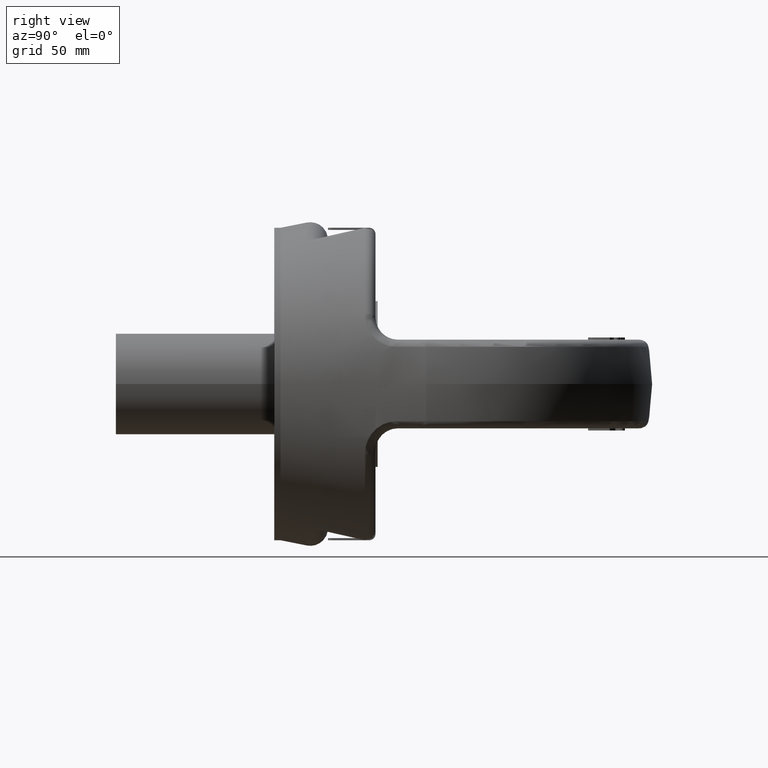
[diagram: clean part render]
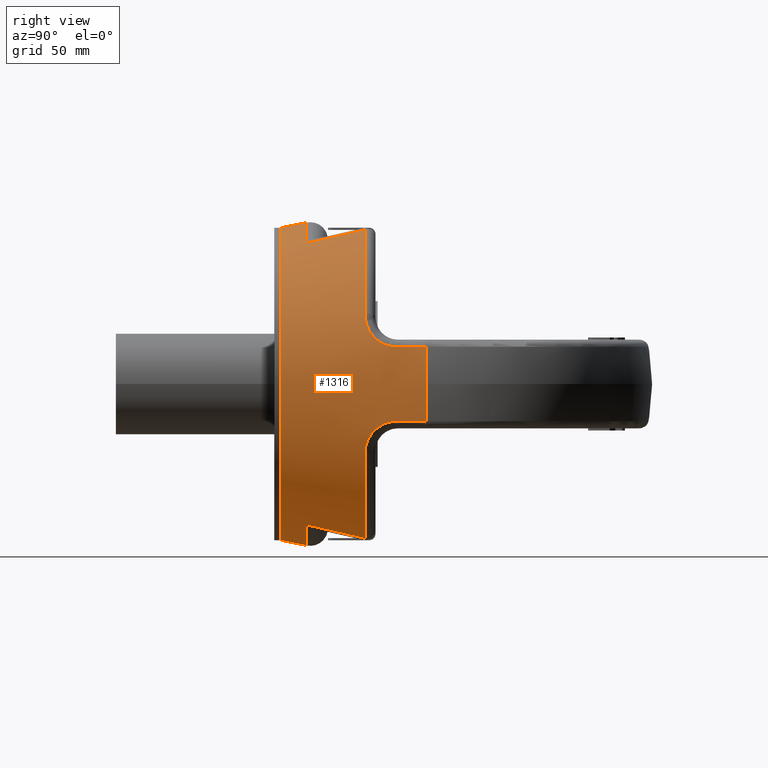
[diagram: same view with one face highlighted and labeled with its STEP entity id]
A machine part, right view. The second image highlights one B-rep face of the part: STEP entity #1316.
In plain terms, the highlighted conical surface has half-angle 11.288 deg.
Its self-contained STEP definition (entity closure, byte-faithful):
#1090=CONICAL_SURFACE('',#5143,73.401198474061,11.2879219682626);
#1316=ADVANCED_FACE('',(#1767,#1768),#1090,.T.);
#1676=CIRCLE('',#5134,87.7687068523221);
#1677=CIRCLE('',#5135,81.979608059908);
#1678=CIRCLE('',#5136,76.486181786183);
#1679=CIRCLE('',#5137,81.9796080599081);
#1680=CIRCLE('',#5138,87.7687068523221);
#1681=CIRCLE('',#5139,81.979608059908);
#1682=CIRCLE('',#5140,76.486181786183);
#1683=CIRCLE('',#5141,81.9796080599081);
#1684=CIRCLE('',#5142,74.0000000000002);
#1767=FACE_BOUND('',#1828,.T.);
#1768=FACE_BOUND('',#1829,.T.);
#1828=EDGE_LOOP('',(#2810,#2811,#2812,#2813,#2814,#2815,#2816,#2817,#2818,
#2819,#2820,#2821,#2822,#2823,#2824,#2825,#2826,#2827,#2828,#2829));
#1829=EDGE_LOOP('',(#2830));
#2810=ORIENTED_EDGE('',*,*,#4372,.T.);
#2811=ORIENTED_EDGE('',*,*,#4373,.T.);
#2812=ORIENTED_EDGE('',*,*,#4374,.T.);
#2813=ORIENTED_EDGE('',*,*,#4375,.T.);
#2814=ORIENTED_EDGE('',*,*,#4376,.T.);
#2815=ORIENTED_EDGE('',*,*,#4377,.T.);
#2816=ORIENTED_EDGE('',*,*,#4378,.T.);
#2817=ORIENTED_EDGE('',*,*,#4379,.T.);
#2818=ORIENTED_EDGE('',*,*,#4380,.T.);
#2819=ORIENTED_EDGE('',*,*,#4381,.T.);
#2820=ORIENTED_EDGE('',*,*,#4382,.T.);
#2821=ORIENTED_EDGE('',*,*,#4383,.T.);
#2822=ORIENTED_EDGE('',*,*,#4384,.T.);
#2823=ORIENTED_EDGE('',*,*,#4385,.T.);
#2824=ORIENTED_EDGE('',*,*,#4386,.T.);
#2825=ORIENTED_EDGE('',*,*,#4387,.T.);
#2826=ORIENTED_EDGE('',*,*,#4388,.T.);
#2827=ORIENTED_EDGE('',*,*,#4389,.T.);
#2828=ORIENTED_EDGE('',*,*,#4390,.T.);
#2829=ORIENTED_EDGE('',*,*,#4391,.T.);
#2830=ORIENTED_EDGE('',*,*,#4392,.F.);
#3982=VERTEX_POINT('',#6756);
#3983=VERTEX_POINT('',#6757);
#3984=VERTEX_POINT('',#6765);
#3985=VERTEX_POINT('',#6772);
#3986=VERTEX_POINT('',#6774);
#3987=VERTEX_POINT('',#6782);
#3988=VERTEX_POINT('',#6784);
#3989=VERTEX_POINT('',#6792);
#3990=VERTEX_POINT('',#6794);
#3991=VERTEX_POINT('',#6801);
#3992=VERTEX_POINT('',#6809);
#3993=VERTEX_POINT('',#6811);
#3994=VERTEX_POINT('',#6819);
#3995=VERTEX_POINT('',#6826);
#3996=VERTEX_POINT('',#6828);
#3997=VERTEX_POINT('',#6836);
#3998=VERTEX_POINT('',#6838);
#3999=VERTEX_POINT('',#6846);
#4000=VERTEX_POINT('',#6848);
#4001=VERTEX_POINT('',#6855);
#4002=VERTEX_POINT('',#6864);
#4372=EDGE_CURVE('',#3982,#3983,#1676,.T.);
#4373=EDGE_CURVE('',#3983,#3984,#4887,.T.);
#4374=EDGE_CURVE('',#3984,#3985,#4888,.T.);
#4375=EDGE_CURVE('',#3985,#3986,#1677,.T.);
#4376=EDGE_CURVE('',#3986,#3987,#4889,.T.);
#4377=EDGE_CURVE('',#3987,#3988,#1678,.T.);
#4378=EDGE_CURVE('',#3988,#3989,#4890,.T.);
#4379=EDGE_CURVE('',#3989,#3990,#1679,.T.);
#4380=EDGE_CURVE('',#3990,#3991,#4891,.T.);
#4381=EDGE_CURVE('',#3991,#3992,#4892,.T.);
#4382=EDGE_CURVE('',#3992,#3993,#1680,.T.);
#4383=EDGE_CURVE('',#3993,#3994,#4893,.T.);
#4384=EDGE_CURVE('',#3994,#3995,#4894,.T.);
#4385=EDGE_CURVE('',#3995,#3996,#1681,.T.);
#4386=EDGE_CURVE('',#3996,#3997,#4895,.T.);
#4387=EDGE_CURVE('',#3997,#3998,#1682,.T.);
#4388=EDGE_CURVE('',#3998,#3999,#4896,.T.);
#4389=EDGE_CURVE('',#3999,#4000,#1683,.T.);
#4390=EDGE_CURVE('',#4000,#4001,#4897,.T.);
#4391=EDGE_CURVE('',#4001,#3982,#4898,.T.);
#4392=EDGE_CURVE('',#4002,#4002,#1684,.T.);
#4887=B_SPLINE_CURVE_WITH_KNOTS('',3,(#6758,#6759,#6760,#6761,#6762,#6763,
#6764),.UNSPECIFIED.,.F.,.F.,(4,3,4),(0.,0.575382144006688,1.),
 .UNSPECIFIED.);
#4888=B_SPLINE_CURVE_WITH_KNOTS('',3,(#6766,#6767,#6768,#6769,#6770,#6771),
 .UNSPECIFIED.,.F.,.F.,(4,2,4),(0.,0.5,1.),.UNSPECIFIED.);
#4889=B_SPLINE_CURVE_WITH_KNOTS('',3,(#6775,#6776,#6777,#6778,#6779,#6780,
#6781),.UNSPECIFIED.,.F.,.F.,(4,3,4),(0.,0.272292325892562,1.),
 .UNSPECIFIED.);
#4890=B_SPLINE_CURVE_WITH_KNOTS('',3,(#6785,#6786,#6787,#6788,#6789,#6790,
#6791),.UNSPECIFIED.,.F.,.F.,(4,3,4),(0.,0.727707674107441,1.),
 .UNSPECIFIED.);
#4891=B_SPLINE_CURVE_WITH_KNOTS('',3,(#6795,#6796,#6797,#6798,#6799,#6800),
 .UNSPECIFIED.,.F.,.F.,(4,2,4),(0.,0.5,1.),.UNSPECIFIED.);
#4892=B_SPLINE_CURVE_WITH_KNOTS('',3,(#6802,#6803,#6804,#6805,#6806,#6807,
#6808),.UNSPECIFIED.,.F.,.F.,(4,3,4),(0.,0.575382144615784,1.),
 .UNSPECIFIED.);
#4893=B_SPLINE_CURVE_WITH_KNOTS('',3,(#6812,#6813,#6814,#6815,#6816,#6817,
#6818),.UNSPECIFIED.,.F.,.F.,(4,3,4),(0.,0.575382144006688,1.),
 .UNSPECIFIED.);
#4894=B_SPLINE_CURVE_WITH_KNOTS('',3,(#6820,#6821,#6822,#6823,#6824,#6825),
 .UNSPECIFIED.,.F.,.F.,(4,2,4),(0.,0.5,1.),.UNSPECIFIED.);
#4895=B_SPLINE_CURVE_WITH_KNOTS('',3,(#6829,#6830,#6831,#6832,#6833,#6834,
#6835),.UNSPECIFIED.,.F.,.F.,(4,3,4),(0.,0.272292325892562,1.),
 .UNSPECIFIED.);
#4896=B_SPLINE_CURVE_WITH_KNOTS('',3,(#6839,#6840,#6841,#6842,#6843,#6844,
#6845),.UNSPECIFIED.,.F.,.F.,(4,3,4),(0.,0.727707674107441,1.),
 .UNSPECIFIED.);
#4897=B_SPLINE_CURVE_WITH_KNOTS('',3,(#6849,#6850,#6851,#6852,#6853,#6854),
 .UNSPECIFIED.,.F.,.F.,(4,2,4),(0.,0.5,1.),.UNSPECIFIED.);
#4898=B_SPLINE_CURVE_WITH_KNOTS('',3,(#6856,#6857,#6858,#6859,#6860,#6861,
#6862),.UNSPECIFIED.,.F.,.F.,(4,3,4),(0.,0.575382144615784,1.),
 .UNSPECIFIED.);
#5134=AXIS2_PLACEMENT_3D('',#6755,#5481,#5482);
#5135=AXIS2_PLACEMENT_3D('',#6773,#5483,#5484);
#5136=AXIS2_PLACEMENT_3D('',#6783,#5485,#5486);
#5137=AXIS2_PLACEMENT_3D('',#6793,#5487,#5488);
#5138=AXIS2_PLACEMENT_3D('',#6810,#5489,#5490);
#5139=AXIS2_PLACEMENT_3D('',#6827,#5491,#5492);
#5140=AXIS2_PLACEMENT_3D('',#6837,#5493,#5494);
#5141=AXIS2_PLACEMENT_3D('',#6847,#5495,#5496);
#5142=AXIS2_PLACEMENT_3D('',#6863,#5497,#5498);
#5143=AXIS2_PLACEMENT_3D('',#6865,#5499,#5500);
#5481=DIRECTION('',(-7.11751401411749E-16,-1.,0.));
#5482=DIRECTION('',(1.,-7.9058859959991E-16,0.));
#5483=DIRECTION('',(9.15811220910091E-16,-1.,2.14566393535999E-30));
#5484=DIRECTION('',(-1.,-9.3105876875139E-16,-2.34291072916505E-15));
#5485=DIRECTION('',(-1.38777878078145E-16,-1.,-3.25144179520044E-31));
#5486=DIRECTION('',(-1.,1.36081323616825E-16,-2.34291072916505E-15));
#5487=DIRECTION('',(-9.15811220910091E-16,-1.,-2.14566393535999E-30));
#5488=DIRECTION('',(-1.,9.3105876875139E-16,-2.34291072916505E-15));
#5489=DIRECTION('',(-7.11751401411749E-16,-1.,0.));
#5490=DIRECTION('',(1.,-7.9058859959991E-16,0.));
#5491=DIRECTION('',(-9.15811220910091E-16,-1.,0.));
#5492=DIRECTION('',(1.,-9.3105876875139E-16,0.));
#5493=DIRECTION('',(1.38777878078145E-16,-1.,0.));
#5494=DIRECTION('',(1.,1.36081323616825E-16,0.));
#5495=DIRECTION('',(9.15811220910091E-16,-1.,0.));
#5496=DIRECTION('',(1.,9.3105876875139E-16,0.));
#5497=DIRECTION('',(0.,-1.,0.));
#5498=DIRECTION('',(0.,0.,1.));
#5499=DIRECTION('',(7.11751401411749E-16,1.,0.));
#5500=DIRECTION('',(-1.,6.10008836392672E-16,0.));
#6755=CARTESIAN_POINT('',(-7.61706944216453E-14,71.9813214690386,0.));
#6756=CARTESIAN_POINT('',(-85.9803918856891,71.9813214690386,17.6271981242673));
#6757=CARTESIAN_POINT('',(-85.980391885689,71.9813214690385,-17.6271981242675));
#6758=CARTESIAN_POINT('',(-85.980391885689,71.9813214690385,-17.6271981242675));
#6759=CARTESIAN_POINT('',(-85.4203072465742,69.2379155645654,-17.6326130880733));
#6760=CARTESIAN_POINT('',(-84.859969467485,66.4945615337865,-17.6381342485516));
#6761=CARTESIAN_POINT('',(-84.2993617476467,63.7512629124852,-17.6437681040137));
#6762=CARTESIAN_POINT('',(-83.8856470520062,61.7267760672273,-17.6479257506448));
#6763=CARTESIAN_POINT('',(-83.471785314221,59.7023193897382,-17.6521447816647));
#6764=CARTESIAN_POINT('',(-83.057769252926,57.6778944153068,-17.6564279959743));
#6765=CARTESIAN_POINT('',(-83.057769252926,57.6778944153068,-17.6564279959743));
#6766=CARTESIAN_POINT('',(-83.057769252926,57.6778944153068,-17.6564279959743));
#6767=CARTESIAN_POINT('',(-82.2098772359987,53.5319350307372,-17.6651998856651));
#6768=CARTESIAN_POINT('',(-81.047252667366,49.6517807290537,-19.5596904391319));
#6769=CARTESIAN_POINT('',(-78.2740373904578,44.3461610836959,-25.4770536933922));
#6770=CARTESIAN_POINT('',(-76.6778512449568,42.9778944153068,-29.3080652379377));
#6771=CARTESIAN_POINT('',(-74.9710052229681,42.9778944153068,-33.1663159472651));
#6772=CARTESIAN_POINT('',(-74.9710052229681,42.9778944153068,-33.1663159472651));
#6773=CARTESIAN_POINT('',(9.68139242728822E-14,42.9778944153069,2.26826381911508E-28));
#6774=CARTESIAN_POINT('',(-37.1310144158038,42.9778944153068,-73.0886031205242));
#6775=CARTESIAN_POINT('',(-37.1310144158038,42.9778944153068,-73.0886031205242));
#6776=CARTESIAN_POINT('',(-37.1562588620238,40.4781663420141,-72.5161358794599));
#6777=CARTESIAN_POINT('',(-37.1820113280751,37.9788532934449,-71.9418750789134));
#6778=CARTESIAN_POINT('',(-37.2083033527759,35.4799943878611,-71.3656725416174));
#6779=CARTESIAN_POINT('',(-37.2785692704162,28.8017481876345,-69.8257607055953));
#6780=CARTESIAN_POINT('',(-37.3526783553789,22.1266991999599,-68.272050908014));
#6781=CARTESIAN_POINT('',(-37.4313287231455,15.4557888306137,-66.7010617175532));
#6782=CARTESIAN_POINT('',(-37.4313287231455,15.4557888306137,-66.7010617175532));
#6783=CARTESIAN_POINT('',(1.1640282149259E-13,15.4557888306138,2.72721419380072E-28));
#6784=CARTESIAN_POINT('',(37.4313287231458,15.4557888306137,-66.7010617175532));
#6785=CARTESIAN_POINT('',(37.4313287231458,15.4557888306137,-66.7010617175532));
#6786=CARTESIAN_POINT('',(37.3526783553792,22.1266991999599,-68.272050908014));
#6787=CARTESIAN_POINT('',(37.2785692704166,28.8017481876345,-69.8257607055952));
#6788=CARTESIAN_POINT('',(37.2083033527762,35.4799943878613,-71.3656725416173));
#6789=CARTESIAN_POINT('',(37.1820113280754,37.978853293445,-71.9418750789133));
#6790=CARTESIAN_POINT('',(37.1562588620241,40.4781663420142,-72.5161358794598));
#6791=CARTESIAN_POINT('',(37.1310144158042,42.9778944153069,-73.0886031205241));
#6792=CARTESIAN_POINT('',(37.1310144158042,42.9778944153069,-73.0886031205241));
#6793=CARTESIAN_POINT('',(9.68139242728822E-14,42.9778944153069,2.26826381911508E-28));
#6794=CARTESIAN_POINT('',(74.9710052229685,42.9778944153068,-33.1663159472648));
#6795=CARTESIAN_POINT('',(74.9710052229685,42.9778944153068,-33.1663159472648));
#6796=CARTESIAN_POINT('',(76.6765092029486,42.9778944153068,-29.3110988651447));
#6797=CARTESIAN_POINT('',(78.2919740568757,44.3772304922774,-25.4377725682379));
#6798=CARTESIAN_POINT('',(81.0376656573622,49.6366954808028,-19.581158509767));
#6799=CARTESIAN_POINT('',(82.2107922642515,53.5364092678984,-17.6651904192153));
#6800=CARTESIAN_POINT('',(83.0577692529262,57.6778944153068,-17.6564279959739));
#6801=CARTESIAN_POINT('',(83.0577692529262,57.6778944153068,-17.6564279959739));
#6802=CARTESIAN_POINT('',(83.0577692529262,57.6778944153068,-17.6564279959739));
#6803=CARTESIAN_POINT('',(83.6187853413621,60.421109200103,-17.6506239889255));
#6804=CARTESIAN_POINT('',(84.1795181235669,63.1643821888856,-17.6449378132822));
#6805=CARTESIAN_POINT('',(84.7399855117163,65.9077096059232,-17.639362577281));
#6806=CARTESIAN_POINT('',(85.1535966452348,67.9322176978567,-17.6352481903766));
#6807=CARTESIAN_POINT('',(85.5670632112184,69.9567554537605,-17.6311942342402));
#6808=CARTESIAN_POINT('',(85.9803918856892,71.9813214690386,-17.6271981242671));
#6809=CARTESIAN_POINT('',(85.9803918856892,71.9813214690386,-17.6271981242671));
#6810=CARTESIAN_POINT('',(-7.61706944216453E-14,71.9813214690386,0.));
#6811=CARTESIAN_POINT('',(85.980391885689,71.9813214690385,17.6271981242673));
#6812=CARTESIAN_POINT('',(85.980391885689,71.9813214690385,17.6271981242673));
#6813=CARTESIAN_POINT('',(85.4203072465742,69.2379155645654,17.6326130880731));
#6814=CARTESIAN_POINT('',(84.859969467485,66.4945615337865,17.6381342485514));
#6815=CARTESIAN_POINT('',(84.2993617476467,63.7512629124852,17.6437681040135));
#6816=CARTESIAN_POINT('',(83.8856470520062,61.7267760672273,17.6479257506446));
#6817=CARTESIAN_POINT('',(83.471785314221,59.7023193897382,17.6521447816645));
#6818=CARTESIAN_POINT('',(83.057769252926,57.6778944153068,17.6564279959741));
#6819=CARTESIAN_POINT('',(83.057769252926,57.6778944153068,17.6564279959741));
#6820=CARTESIAN_POINT('',(83.057769252926,57.6778944153068,17.6564279959741));
#6821=CARTESIAN_POINT('',(82.2098772359988,53.5319350307372,17.6651998856649));
#6822=CARTESIAN_POINT('',(81.0472526673661,49.6517807290537,19.5596904391317));
#6823=CARTESIAN_POINT('',(78.2740373904579,44.3461610836959,25.477053693392));
#6824=CARTESIAN_POINT('',(76.6778512449568,42.9778944153068,29.3080652379375));
#6825=CARTESIAN_POINT('',(74.9710052229682,42.9778944153068,33.1663159472649));
#6826=CARTESIAN_POINT('',(74.9710052229682,42.9778944153068,33.1663159472649));
#6827=CARTESIAN_POINT('',(-9.68139242728822E-14,42.9778944153069,0.));
#6828=CARTESIAN_POINT('',(37.131014415804,42.9778944153068,73.0886031205241));
#6829=CARTESIAN_POINT('',(37.131014415804,42.9778944153068,73.0886031205241));
#6830=CARTESIAN_POINT('',(37.156258862024,40.4781663420141,72.5161358794598));
#6831=CARTESIAN_POINT('',(37.1820113280752,37.9788532934449,71.9418750789133));
#6832=CARTESIAN_POINT('',(37.2083033527761,35.4799943878611,71.3656725416173));
#6833=CARTESIAN_POINT('',(37.2785692704164,28.8017481876345,69.8257607055952));
#6834=CARTESIAN_POINT('',(37.3526783553791,22.1266991999599,68.2720509080139));
#6835=CARTESIAN_POINT('',(37.4313287231457,15.4557888306137,66.7010617175532));
#6836=CARTESIAN_POINT('',(37.4313287231457,15.4557888306137,66.7010617175532));
#6837=CARTESIAN_POINT('',(-1.1640282149259E-13,15.4557888306138,0.));
#6838=CARTESIAN_POINT('',(-37.4313287231457,15.4557888306137,66.7010617175533));
#6839=CARTESIAN_POINT('',(-37.4313287231457,15.4557888306137,66.7010617175533));
#6840=CARTESIAN_POINT('',(-37.3526783553791,22.1266991999599,68.2720509080141));
#6841=CARTESIAN_POINT('',(-37.2785692704164,28.8017481876345,69.8257607055953));
#6842=CARTESIAN_POINT('',(-37.2083033527761,35.4799943878613,71.3656725416174));
#6843=CARTESIAN_POINT('',(-37.1820113280752,37.978853293445,71.9418750789134));
#6844=CARTESIAN_POINT('',(-37.156258862024,40.4781663420142,72.5161358794599));
#6845=CARTESIAN_POINT('',(-37.131014415804,42.9778944153069,73.0886031205242));
#6846=CARTESIAN_POINT('',(-37.131014415804,42.9778944153069,73.0886031205242));
#6847=CARTESIAN_POINT('',(-9.68139242728822E-14,42.9778944153069,0.));
#6848=CARTESIAN_POINT('',(-74.9710052229684,42.9778944153068,33.1663159472649));
#6849=CARTESIAN_POINT('',(-74.9710052229684,42.9778944153068,33.1663159472649));
#6850=CARTESIAN_POINT('',(-76.6765092029485,42.9778944153068,29.3110988651449));
#6851=CARTESIAN_POINT('',(-78.2919740568756,44.3772304922774,25.4377725682381));
#6852=CARTESIAN_POINT('',(-81.0376656573622,49.6366954808028,19.5811585097672));
#6853=CARTESIAN_POINT('',(-82.2107922642515,53.5364092678984,17.6651904192155));
#6854=CARTESIAN_POINT('',(-83.0577692529261,57.6778944153068,17.6564279959741));
#6855=CARTESIAN_POINT('',(-83.0577692529261,57.6778944153068,17.6564279959741));
#6856=CARTESIAN_POINT('',(-83.0577692529261,57.6778944153068,17.6564279959741));
#6857=CARTESIAN_POINT('',(-83.618785341362,60.421109200103,17.6506239889257));
#6858=CARTESIAN_POINT('',(-84.1795181235669,63.1643821888856,17.6449378132824));
#6859=CARTESIAN_POINT('',(-84.7399855117163,65.9077096059232,17.6393625772812));
#6860=CARTESIAN_POINT('',(-85.1535966452347,67.9322176978567,17.6352481903768));
#6861=CARTESIAN_POINT('',(-85.5670632112184,69.9567554537605,17.6311942342404));
#6862=CARTESIAN_POINT('',(-85.9803918856891,71.9813214690386,17.6271981242673));
#6863=CARTESIAN_POINT('',(-1.27403500852703E-13,3.00000000000006,1.26481338938524E-14));
#6864=CARTESIAN_POINT('',(-1.27403500852703E-13,3.00000000000006,74.0000000000002));
#6865=CARTESIAN_POINT('',(-1.27403500852703E-13,5.55111512312578E-14,0.));